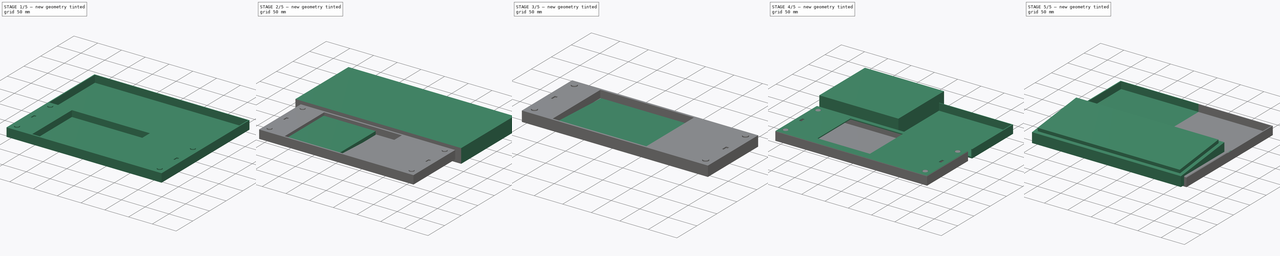
[diagram: build sequence overview — one tinted view per stage of 5, left to right]
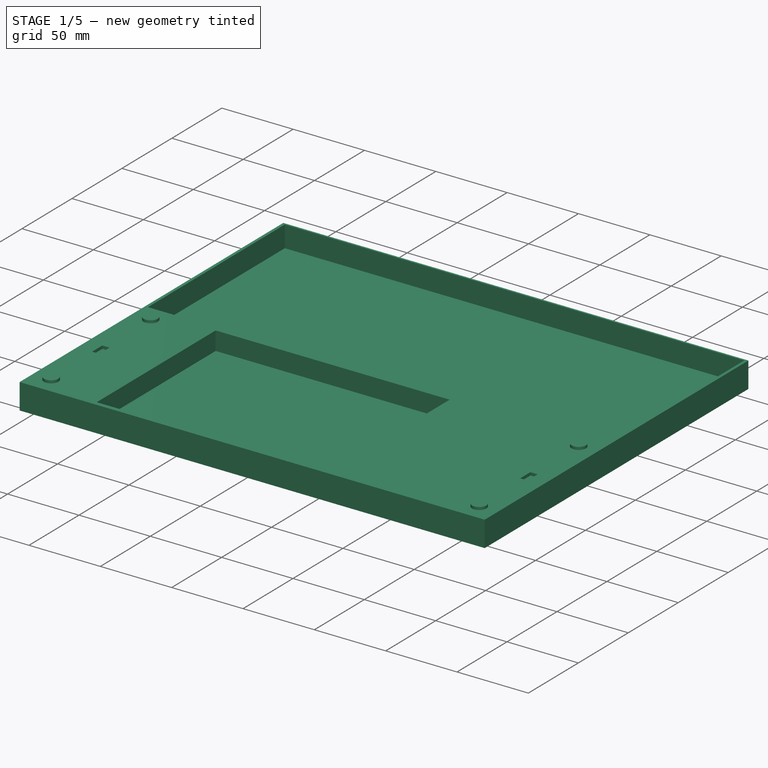
[diagram: stage 1 of 5 — iso view after this stage's code; geometry added in this stage tinted green]
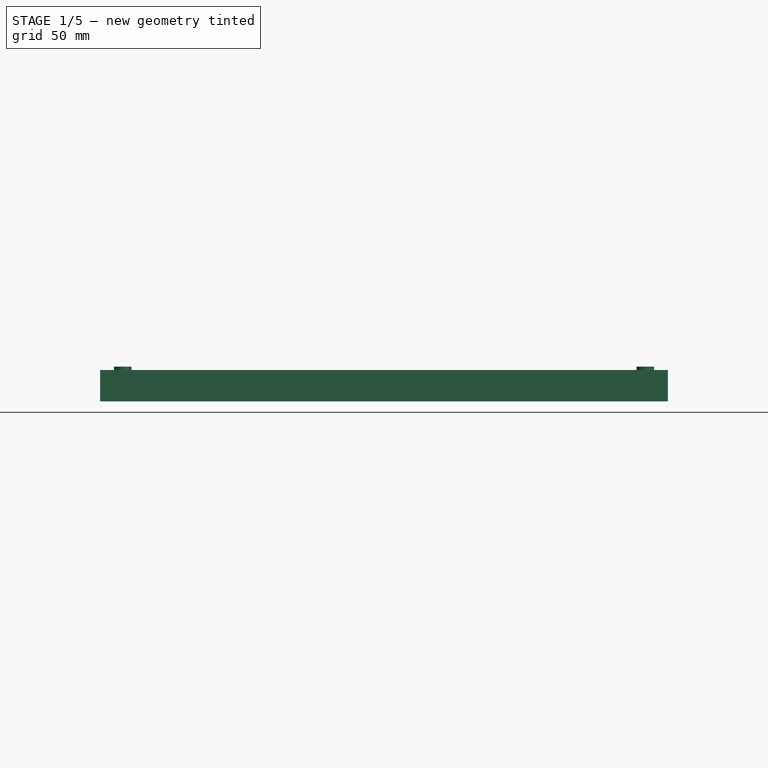
[diagram: stage 1 of 5 — front view after this stage's code; geometry added in this stage tinted green]
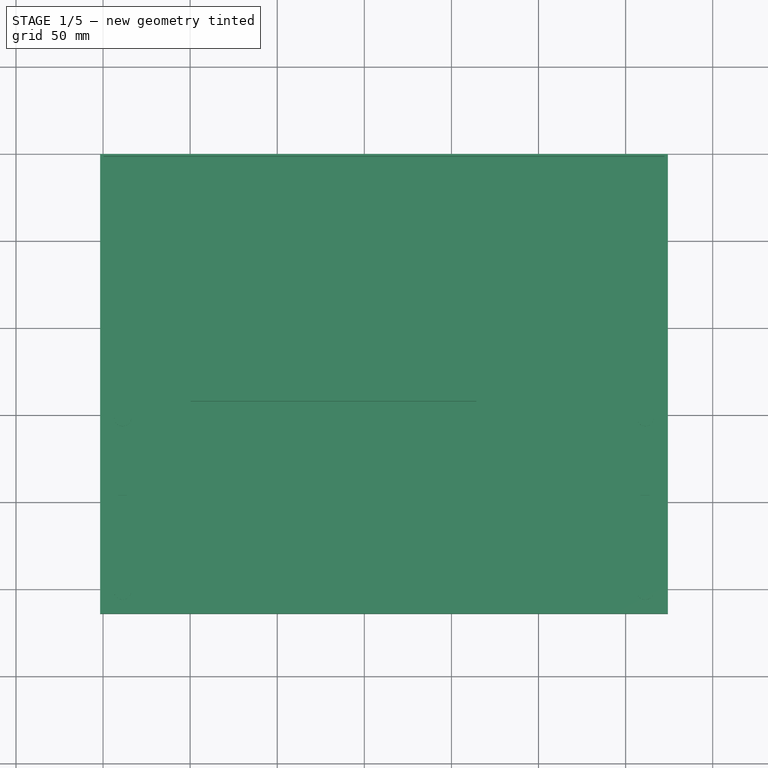
[diagram: stage 1 of 5 — top view after this stage's code; geometry added in this stage tinted green]
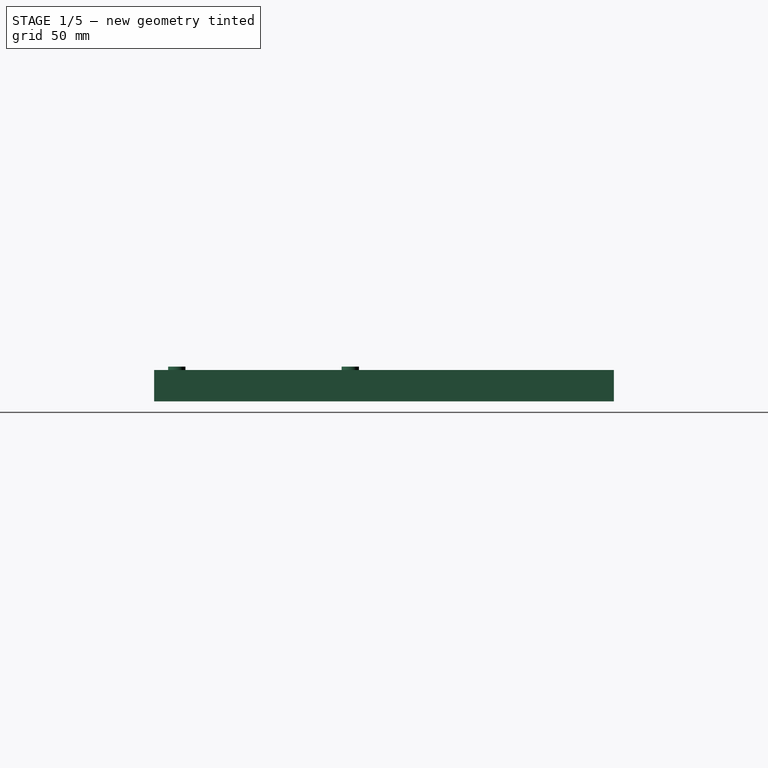
[diagram: stage 1 of 5 — right view after this stage's code; geometry added in this stage tinted green]
FCSTD DOCUMENT  (FreeCAD 0.19R24276 (Git))
Label: keypad
License: All rights reserved
LicenseURL: http://en.wikipedia.org/wiki/All_rights_reserved
objects: Sketcher::SketchObject×12, Part::Common×8, PartDesign::Pad×7, PartDesign::Body×5, PartDesign::Pocket×5, Part::Box×5, App::MeasureDistance×2, PartDesign::Fillet×1, Part::MultiFuse×1, Part::Cut×1
note: 58 computed .brp shape members not serialized (recipe doc carries the construction recipe); baked Part::Feature solids carry a one-line shape summary decoded from their .brp

FEATURE [PartDesign::Body] Body001  label="keyboard"
  Group = -> [Sketch001,Pad001,Sketch002,Pad002]
  Origin = -> Origin001
  Placement = pos=(2,138,2) rot=(0,0,1;0rad)
  Tip = -> Pad002
FEATURE [Sketcher::SketchObject] Sketch003  label="底板"
  FullyConstrained = false
  MapMode = 5
  Support = -> [XY_Plane002]
  sketch-geometry (4):
    g0: LineSegment StartX=324.294 StartY=199.796 StartZ=0 EndX=-1.70571 EndY=199.796 EndZ=0
    g1: LineSegment StartX=-1.70571 StartY=199.796 StartZ=0 EndX=-1.70571 EndY=-64.1519 EndZ=0
    g2: LineSegment StartX=-1.70571 StartY=-64.1519 StartZ=0 EndX=324.294 EndY=-64.1519 EndZ=0
    g3: LineSegment StartX=324.294 StartY=-64.1519 StartZ=0 EndX=324.294 EndY=199.796 EndZ=0
  constraints (9):
    c: Coincident(g0,g1)
    c: Coincident(g1,g2)
    c: Coincident(g2,g3)
    c: Coincident(g3,g0)
    c: Horizontal(g0)
    c: Horizontal(g2)
    c: Vertical(g1)
    c: Vertical(g3)
    c: DistanceX(g0,g0) = 326  '319+2+1.5x2'
FEATURE [PartDesign::Pad] Pad003  label="Pad_底板"
  AllowMultiFace = false
  Direction = (1,1,1)
  Length = 18
  Length2 = 100
  Profile = -> Sketch003
  Type = 0
FEATURE [Sketcher::SketchObject] Sketch004  label="挖键盘"
  ExternalGeometry = -> [Pad003]
  FullyConstrained = false
  MapMode = 5
  Placement = pos=(0,0,18) rot=(0,0,1;0rad)
  Support = -> [Pad003]
  sketch-geometry (4):
    g0: LineSegment StartX=0.294286 StartY=198.505 StartZ=0 EndX=322.294 EndY=198.505 EndZ=0
    g1: LineSegment StartX=322.294 StartY=198.505 StartZ=0 EndX=322.294 EndY=61.5047 EndZ=0
    g2: LineSegment StartX=322.294 StartY=61.5047 StartZ=0 EndX=0.294286 EndY=61.5047 EndZ=0
    g3: LineSegment StartX=0.294286 StartY=61.5047 StartZ=0 EndX=0.294286 EndY=198.505 EndZ=0
  constraints (11):
    c: Coincident(g0,g1)
    c: Coincident(g1,g2)
    c: Coincident(g2,g3)
    c: Coincident(g3,g0)
    c: Horizontal(g0)
    c: Horizontal(g2)
    c: Vertical(g1)
    c: Vertical(g3)
    c: DistanceX(g-4,g0) = 2
    c: DistanceX(g0,g-5) = 2
    c: DistanceY(g2,g0) = 137
FEATURE [PartDesign::Pocket] Pocket  label="Pocket_挖键盘"
  AllowMultiFace = false
  BaseFeature = -> Pad003
  Length = 15
  Length2 = 100
  Profile = -> Sketch004
  Type = 0
FEATURE [Sketcher::SketchObject] Sketch005  label="挖触摸板"
  ExternalGeometry = -> [Pocket]
  FullyConstrained = true
  MapMode = 5
  Placement = pos=(0,0,18) rot=(0,0,1;0rad)
  Support = -> [Pocket]
  sketch-geometry (4):
    g0: LineSegment StartX=50.2943 StartY=57.8481 StartZ=0 EndX=214.294 EndY=57.8481 EndZ=0
    g1: LineSegment StartX=214.294 StartY=57.8481 StartZ=0 EndX=214.294 EndY=-61.1519 EndZ=0
    g2: LineSegment StartX=214.294 StartY=-61.1519 StartZ=0 EndX=50.2943 EndY=-61.1519 EndZ=0
    g3: LineSegment StartX=50.2943 StartY=-61.1519 StartZ=0 EndX=50.2943 EndY=57.8481 EndZ=0
  constraints (12):
    c: Coincident(g0,g1)
    c: Coincident(g1,g2)
    c: Coincident(g2,g3)
    c: Coincident(g3,g0)
    c: Horizontal(g0)
    c: Horizontal(g2)
    c: Vertical(g1)
    c: Vertical(g3)
    c: DistanceY(g-5,g1) = 3
    c: DistanceY(g1,g1) = 119
    c: DistanceX(g0,g0) = 164
    c: DistanceX(g-4,g2) = 52
FEATURE [PartDesign::Pocket] Pocket001  label="Pocket_挖触摸板"
  AllowMultiFace = false
  BaseFeature = -> Pocket
  Length = 13
  Length2 = 100
  Profile = -> Sketch005
  Type = 0
FEATURE [PartDesign::Body] Body003  label="trackpad_斜坡"
  Group = -> [Sketch006,Pad004]
  Origin = -> Origin003
  Placement = pos=(52,-1,14) rot=(1,0,0;3.14159rad)
  Tip = -> Pad004
FEATURE [Sketcher::SketchObject] Sketch007
  FullyConstrained = false
  MapMode = 5
  Support = -> [XY_Plane004]
  sketch-geometry (4):
    g0: LineSegment StartX=-1.70326 StartY=61.5017 StartZ=0 EndX=324.294 EndY=61.5017 EndZ=0
    g1: LineSegment StartX=324.294 StartY=61.5017 StartZ=0 EndX=324.294 EndY=-64.1519 EndZ=0
    g2: LineSegment StartX=324.294 StartY=-64.1519 StartZ=0 EndX=-1.70326 EndY=-64.1519 EndZ=0
    g3: LineSegment StartX=-1.70326 StartY=-64.1519 StartZ=0 EndX=-1.70326 EndY=61.5017 EndZ=0
  constraints (8):
    c: Coincident(g0,g1)
    c: Coincident(g1,g2)
    c: Coincident(g2,g3)
    c: Coincident(g3,g0)
    c: Horizontal(g0)
    c: Horizontal(g2)
    c: Vertical(g1)
    c: Vertical(g3)
FEATURE [PartDesign::Pad] Pad005
  AllowMultiFace = false
  Direction = (1,1,1)
  Length = 2
  Length2 = 100
  Profile = -> Sketch007
  Type = 0
FEATURE [Sketcher::SketchObject] Sketch009  label="固定座"
  ExternalGeometry = -> [Pocket]
  FullyConstrained = true
  MapMode = 5
  Placement = pos=(0,0,18) rot=(0,0,1;0rad)
  Support = -> [Pocket]
  sketch-geometry (4):
    g0: Circle CenterX=11.2943 CenterY=48.4981 CenterZ=0 NormalX=0 NormalY=0 NormalZ=1 AngleXU=0 Radius=5
    g1: Circle CenterX=11.2943 CenterY=-51.1519 CenterZ=0 NormalX=0 NormalY=0 NormalZ=1 AngleXU=0 Radius=5
    g2: Circle CenterX=311.294 CenterY=-51.1519 CenterZ=0 NormalX=0 NormalY=0 NormalZ=1 AngleXU=0 Radius=5
    g3: Circle CenterX=311.294 CenterY=48.4981 CenterZ=0 NormalX=0 NormalY=0 NormalZ=1 AngleXU=0 Radius=5
  constraints (12):
    c: Radius(g0) = 5
    c: Equal(g0,g1)
    c: Equal(g0,g2)
    c: Equal(g0,g3)
    c: Distance(g0,g-3) = 13
    c: Distance(g1,g-3) = 13
    c: Distance(g1,g-6) = 13
    c: Distance(g2,g-6) = 13
    c: Distance(g2,g-5) = 13
    c: Distance(g3,g-5) = 13
    c: DistanceY(g1,g0) = 99.65
    c: DistanceY(g2,g3) = 99.65
FEATURE [PartDesign::Pad] Pad006  label="固定座001"
  AllowMultiFace = false
  BaseFeature = -> Pocket001
  Direction = (1,1,1)
  Length = 1.9
  Length2 = 100
  Profile = -> Sketch009
  Type = 0
FEATURE [Sketcher::SketchObject] Sketch012  label="Sketch挖磁铁"
  ExternalGeometry = -> [Pad006]
  FullyConstrained = true
  MapMode = 5
  Placement = pos=(0,0,18) rot=(0,0,1;0rad)
  Support = -> [Pad006]
  sketch-geometry (14):
    g0: LineSegment StartX=8.74429 StartY=3.77307 StartZ=0 EndX=13.8443 EndY=3.77307 EndZ=0
    g1: LineSegment StartX=13.8443 StartY=3.77307 StartZ=0 EndX=13.8443 EndY=-6.42693 EndZ=0
    g2: LineSegment StartX=13.8443 StartY=-6.42693 StartZ=0 EndX=8.74429 EndY=-6.42693 EndZ=0
    g3: LineSegment StartX=8.74429 StartY=-6.42693 StartZ=0 EndX=8.74429 EndY=3.77307 EndZ=0
    g4: LineSegment StartX=308.744 StartY=3.77307 StartZ=0 EndX=313.844 EndY=3.77307 EndZ=0
    g5: LineSegment StartX=313.844 StartY=3.77307 StartZ=0 EndX=313.844 EndY=-6.42693 EndZ=0
    g6: LineSegment StartX=313.844 StartY=-6.42693 StartZ=0 EndX=308.744 EndY=-6.42693 EndZ=0
    g7: LineSegment StartX=308.744 StartY=-6.42693 StartZ=0 EndX=308.744 EndY=3.77307 EndZ=0
    g8: LineSegment StartX=11.2943 StartY=48.4981 StartZ=0 EndX=11.2943 EndY=-51.1519 EndZ=0
    g9: LineSegment StartX=11.2943 StartY=48.4981 StartZ=0 EndX=13.8443 EndY=3.77307 EndZ=0
    g10: LineSegment StartX=13.8443 StartY=-6.42693 StartZ=0 EndX=11.2943 EndY=-51.1519 EndZ=0
    g11: LineSegment StartX=311.294 StartY=48.4981 StartZ=0 EndX=308.744 EndY=3.77307 EndZ=0
    g12: LineSegment StartX=308.744 StartY=-6.42693 StartZ=0 EndX=311.294 EndY=-51.1519 EndZ=0
    g13: LineSegment StartX=311.294 StartY=-51.1519 StartZ=0 EndX=311.294 EndY=48.4981 EndZ=0
  constraints (34):
    c: Coincident(g0,g1)
    c: Coincident(g1,g2)
    c: Coincident(g2,g3)
    c: Coincident(g3,g0)
    c: Horizontal(g2)
    c: Vertical(g1)
    c: Vertical(g3)
    c: Coincident(g4,g5)
    c: Coincident(g5,g6)
    c: Coincident(g6,g7)
    c: Coincident(g7,g4)
    c: Horizontal(g6)
    c: Vertical(g5)
    c: Vertical(g7)
    c: Coincident(g8,g-3)
    c: Coincident(g8,g-6)
    c: Coincident(g9,g8)
    c: Coincident(g9,g0)
    c: Coincident(g10,g1)
    c: Coincident(g10,g8)
    c: Coincident(g11,g-8)
    c: Coincident(g11,g4)
    c: Coincident(g12,g6)
    c: Coincident(g12,g-7)
    c: Coincident(g13,g12)
    c: Coincident(g13,g11)
    c: DistanceX(g0,g0) = 5.1
    c: DistanceX(g4,g4) = 5.1
    c: DistanceY(g1,g1) = 10.2
    c: DistanceY(g7,g7) = 10.2
    c: Symmetric(g0,g0,g8)
    c: Symmetric(g4,g4,g13)
    c: DistanceY(g4,g0) = 0
    c: Equal(g9,g10)
FEATURE [PartDesign::Pocket] Pocket004  label="Pocket挖磁铁"
  BaseFeature = -> Pad006
  Length = 2.1
  Length2 = 100
  Profile = -> Sketch012
  Type = 0
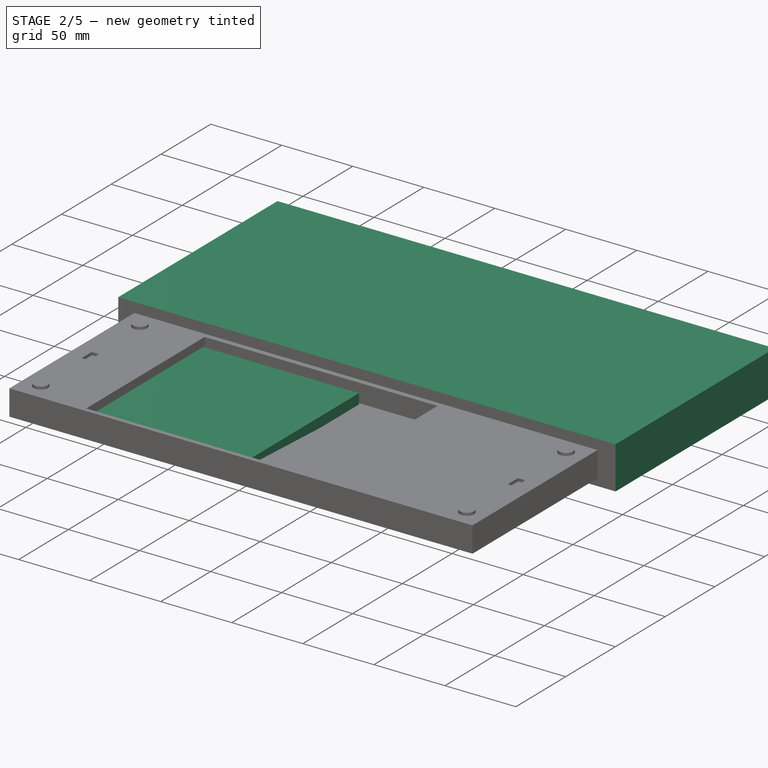
[diagram: stage 2 of 5 — iso view after this stage's code; geometry added in this stage tinted green]
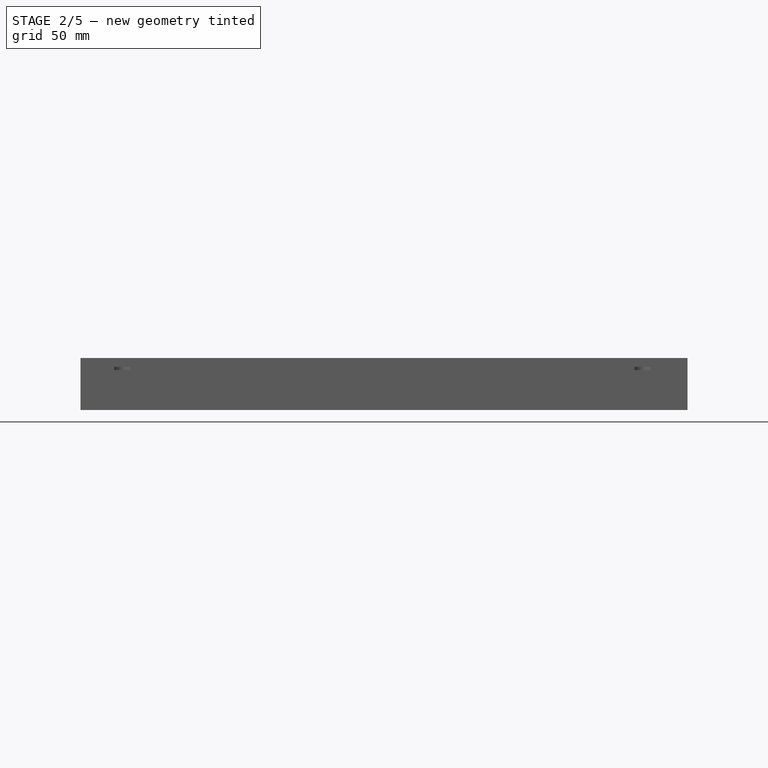
[diagram: stage 2 of 5 — front view after this stage's code; geometry added in this stage tinted green]
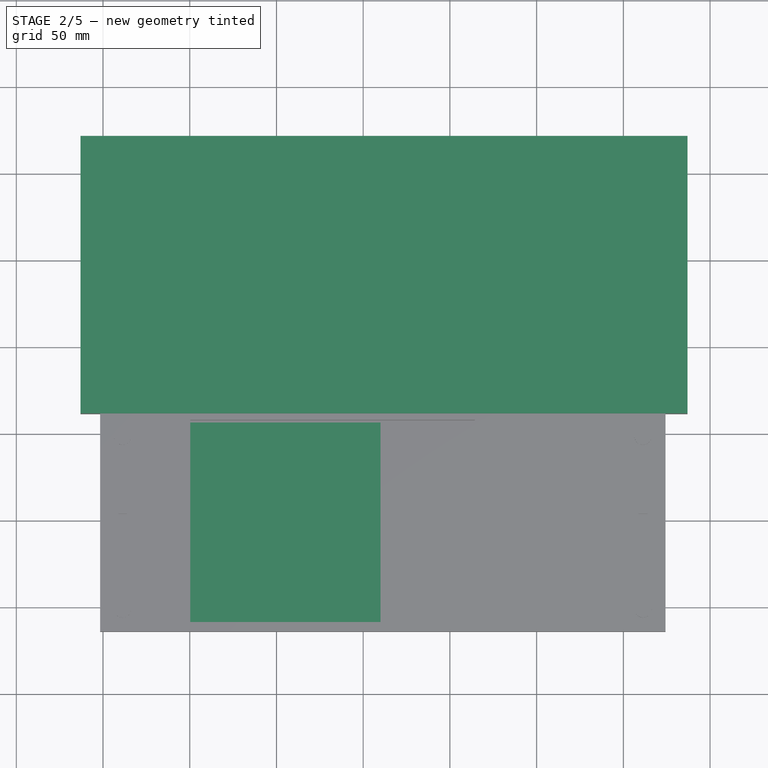
[diagram: stage 2 of 5 — top view after this stage's code; geometry added in this stage tinted green]
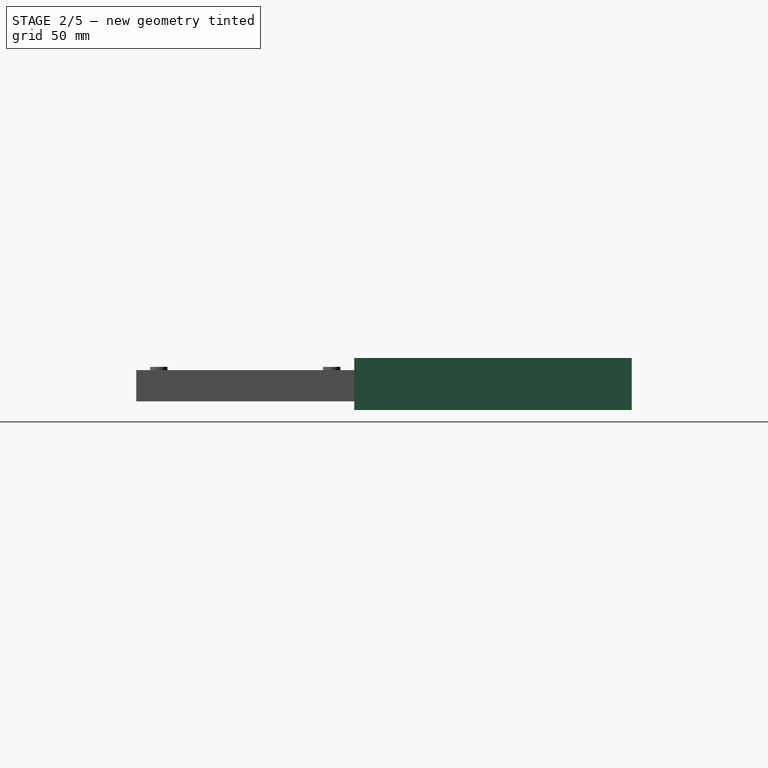
[diagram: stage 2 of 5 — right view after this stage's code; geometry added in this stage tinted green]
FEATURE [Sketcher::SketchObject] Sketch006
  FullyConstrained = false
  MapMode = 5
  Placement = pos=(0,0,0) rot=(0.57735,0.57735,0.57735;2.0944rad)
  Support = -> [YZ_Plane003]
  sketch-geometry (4):
    g0: LineSegment StartX=-58.5755 StartY=8.57135 StartZ=0 EndX=56.4245 EndY=3.17135 EndZ=0
    g1: LineSegment StartX=56.4245 StartY=12.1714 StartZ=0 EndX=56.4245 EndY=3.17135 EndZ=0
    g2: LineSegment StartX=56.4245 StartY=12.1714 StartZ=0 EndX=-58.5755 EndY=12.1714 EndZ=0
    g3: LineSegment StartX=-58.5755 StartY=12.1714 StartZ=0 EndX=-58.5755 EndY=8.57135 EndZ=0
  constraints (10):
    c: Coincident(g1,g2)
    c: Coincident(g3,g2)
    c: Coincident(g3,g0)
    c: Coincident(g1,g0)
    c: Parallel(g2,g-1)
    c: Parallel(g3,g-2)
    c: Parallel(g1,g-2)
    c: DistanceX(g2,g1) = 115
    c: DistanceY(g0,g1) = 9
    c: DistanceY(g0,g2) = 3.6
FEATURE [PartDesign::Pad] Pad004
  AllowMultiFace = false
  Direction = (1,1,1)
  Length = 160
  Length2 = 100
  Placement = pos=(0,0,0) rot=(0.57735,0.57735,0.57735;2.0944rad)
  Profile = -> Sketch006
  Type = 0
FEATURE [Sketcher::SketchObject] Sketch008  label="挖触摸板、固定孔"
  ExternalGeometry = -> [Pad005]
  FullyConstrained = false
  MapMode = 5
  Placement = pos=(0,0,2) rot=(0,0,1;0rad)
  Support = -> [Pad005]
  sketch-geometry (8):
    g0: LineSegment StartX=77.8267 StartY=53.0017 StartZ=0 EndX=190.327 EndY=53.0017 EndZ=0
    g1: LineSegment StartX=190.327 StartY=53.0017 StartZ=0 EndX=190.327 EndY=-48.3019 EndZ=0
    g2: LineSegment StartX=190.327 StartY=-48.3019 StartZ=0 EndX=77.8267 EndY=-48.3019 EndZ=0
    g3: LineSegment StartX=77.8267 StartY=-48.3019 StartZ=0 EndX=77.8267 EndY=53.0017 EndZ=0
    g4: Circle CenterX=11.2967 CenterY=48.4981 CenterZ=0 NormalX=0 NormalY=0 NormalZ=1 AngleXU=0 Radius=5.3
    g5: Circle CenterX=11.2967 CenterY=-51.1519 CenterZ=0 NormalX=0 NormalY=0 NormalZ=1 AngleXU=0 Radius=5.3
    g6: Circle CenterX=311.294 CenterY=48.4981 CenterZ=0 NormalX=0 NormalY=0 NormalZ=1 AngleXU=0 Radius=5.3
    g7: Circle CenterX=311.294 CenterY=-51.1519 CenterZ=0 NormalX=0 NormalY=0 NormalZ=1 AngleXU=0 Radius=5.3
  constraints (24):
    c: Coincident(g0,g1)
    c: Coincident(g1,g2)
    c: Coincident(g2,g3)
    c: Coincident(g3,g0)
    c: Horizontal(g0)
    c: Horizontal(g2)
    c: Vertical(g1)
    c: Vertical(g3)
    c: Radius(g4) = 5.3
    c: Equal(g4,g5)
    c: Equal(g4,g6)
    c: Equal(g4,g7)
    c: Distance(g4,g-4) = 13
    c: Distance(g5,g-5) = 13
    c: Distance(g5,g-4) = 13
    c: Distance(g6,g-6) = 13
    c: Distance(g7,g-6) = 13
    c: Distance(g7,g-5) = 13
    c: DistanceY(g5,g4) = 99.65
    c: DistanceY(g7,g6) = 99.65
    c: DistanceX(g0,g0) = 112.5
    c: Distance(g0,g-3) = 8.5
    c: DistanceX(g-4,g0) = 79.53
    c: DistanceY(g-5,g2) = 15.85
FEATURE [PartDesign::Pocket] Pocket002  label="挖触摸板、固定孔001"
  AllowMultiFace = false
  BaseFeature = -> Pad005
  Length = 3
  Length2 = 100
  Profile = -> Sketch008
  Type = 0
FEATURE [Part::Box] Box004  label="立方体_去除键盘部分"
  AttacherType = Attacher::AttachEngine3D
  Height = 30
  Length = 350
  Placement = pos=(-13,61.51,-5) rot=(0,0,1;0rad)
  Width = 160
FEATURE [PartDesign::Fillet] Fillet
  Base = -> Pocket002 [Edge20,Edge10,Edge7]
  BaseFeature = -> Pocket002
  Radius = 1.99
  SupportTransform = false
FEATURE [Sketcher::SketchObject] Sketch010  label="Sketch挖磁铁001"
  ExternalGeometry = -> [Fillet]
  FullyConstrained = true
  MapMode = 5
  Placement = pos=(0,0,0) rot=(1,0,0;3.14159rad)
  Support = -> [Fillet]
  sketch-geometry (12):
    g0: LineSegment StartX=8.74674 StartY=6.42695 StartZ=0 EndX=13.8467 EndY=6.42695 EndZ=0
    g1: LineSegment StartX=13.8467 StartY=6.42695 StartZ=0 EndX=13.8467 EndY=-3.77305 EndZ=0
    g2: LineSegment StartX=13.8467 StartY=-3.77305 StartZ=0 EndX=8.74674 EndY=-3.77305 EndZ=0
    g3: LineSegment StartX=8.74674 StartY=-3.77305 StartZ=0 EndX=8.74674 EndY=6.42695 EndZ=0
    g4: LineSegment StartX=308.744 StartY=6.42695 StartZ=0 EndX=313.844 EndY=6.42695 EndZ=0
    g5: LineSegment StartX=313.844 StartY=6.42695 StartZ=0 EndX=313.844 EndY=-3.77305 EndZ=0
    g6: LineSegment StartX=313.844 StartY=-3.77305 StartZ=0 EndX=308.744 EndY=-3.77305 EndZ=0
    g7: LineSegment StartX=308.744 StartY=-3.77305 StartZ=0 EndX=308.744 EndY=6.42695 EndZ=0
    g8: LineSegment StartX=11.2967 StartY=51.1519 StartZ=0 EndX=11.2967 EndY=-48.4981 EndZ=0
    g9: LineSegment StartX=311.294 StartY=51.1519 StartZ=0 EndX=311.294 EndY=-48.4981 EndZ=0
    g10: LineSegment StartX=11.2967 StartY=51.1519 StartZ=0 EndX=13.8467 EndY=6.42695 EndZ=0
    g11: LineSegment StartX=13.8467 StartY=-3.77305 StartZ=0 EndX=11.2967 EndY=-48.4981 EndZ=0
  constraints (30):
    c: Coincident(g0,g1)
    c: Coincident(g1,g2)
    c: Coincident(g2,g3)
    c: Coincident(g3,g0)
    c: Horizontal(g2)
    c: Vertical(g1)
    c: Vertical(g3)
    c: Coincident(g4,g5)
    c: Coincident(g5,g6)
    c: Coincident(g6,g7)
    c: Coincident(g7,g4)
    c: Horizontal(g6)
    c: Vertical(g5)
    c: Vertical(g7)
    c: DistanceY(g3,g3) = 10.2
    c: DistanceX(g0,g0) = 5.1
    c: DistanceX(g4,g4) = 5.1
    c: DistanceY(g7,g7) = 10.2
    c: DistanceY(g0,g4) = 0
    c: Coincident(g8,g-7)
    c: Coincident(g8,g-8)
    c: Coincident(g9,g-9)
    c: Coincident(g9,g-10)
    c: Symmetric(g0,g0,g8)
    c: Symmetric(g4,g4,g9)
    c: Coincident(g10,g8)
    c: Coincident(g10,g0)
    c: Coincident(g11,g1)
    c: Coincident(g11,g8)
    c: Equal(g10,g11)
FEATURE [PartDesign::Pocket] Pocket003  label="Pocket挖磁铁001"
  BaseFeature = -> Fillet
  Length = 2
  Length2 = 100
  Profile = -> Sketch010
  Type = 0
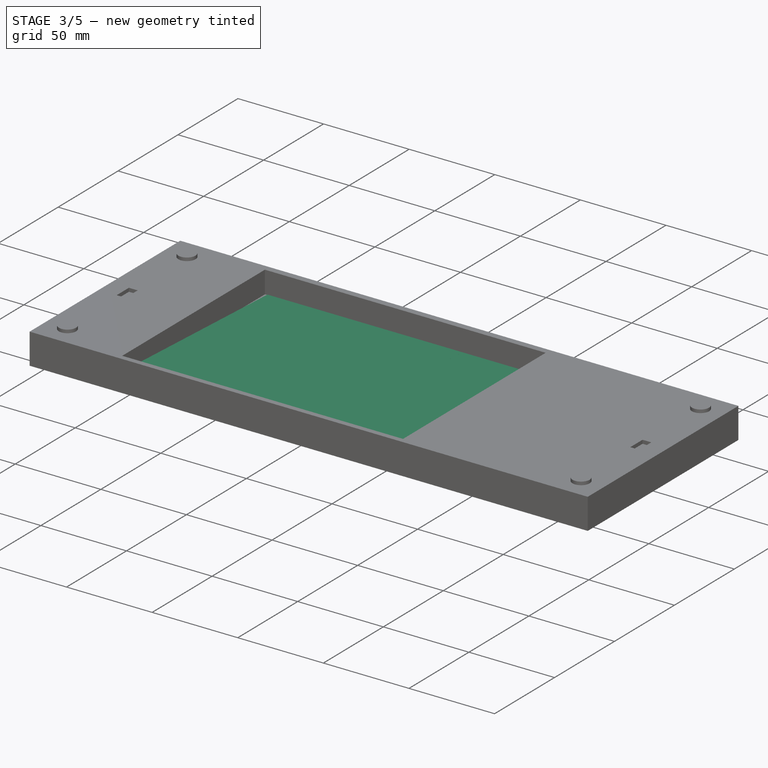
[diagram: stage 3 of 5 — iso view after this stage's code; geometry added in this stage tinted green]
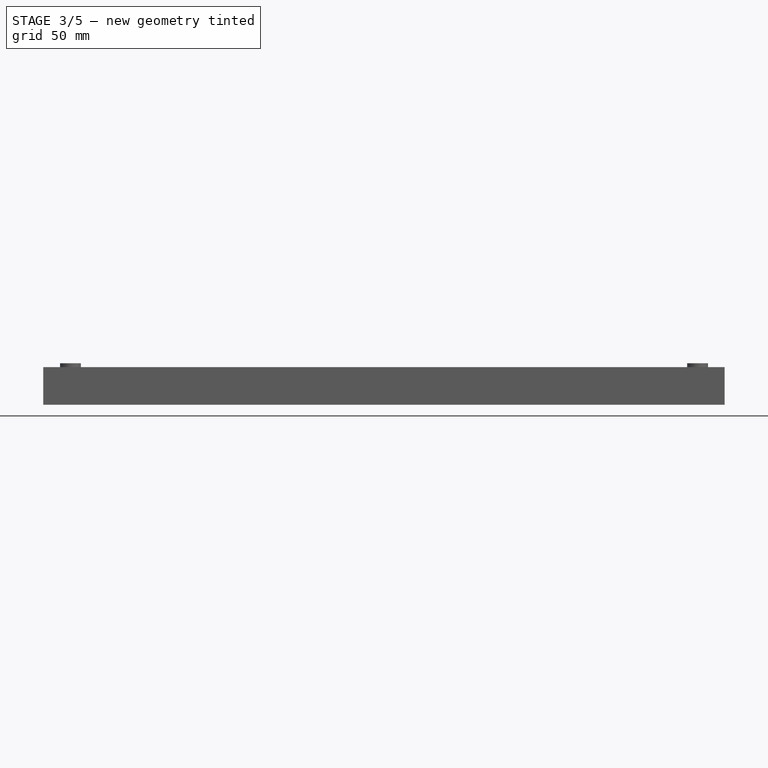
[diagram: stage 3 of 5 — front view after this stage's code; geometry added in this stage tinted green]
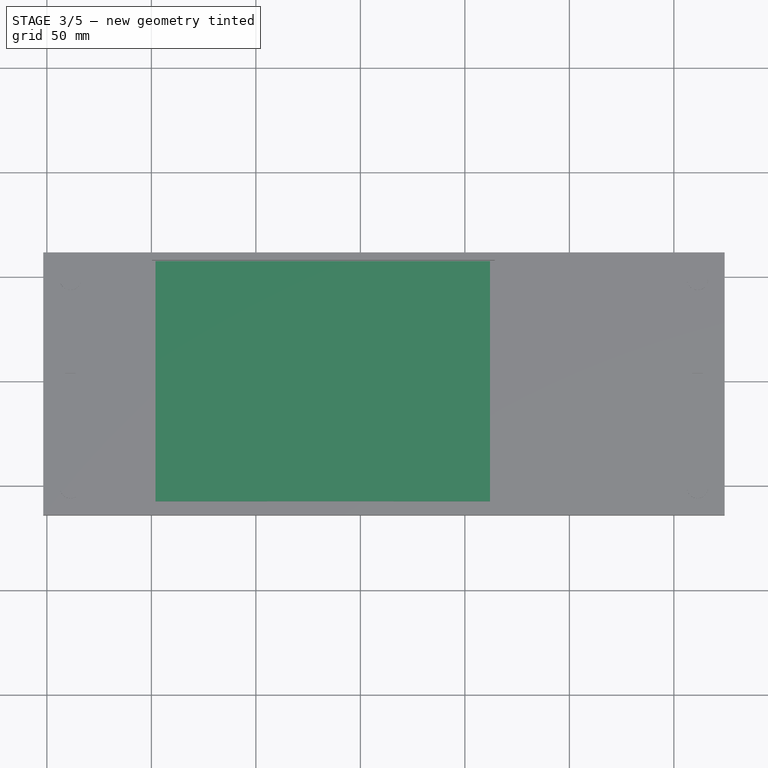
[diagram: stage 3 of 5 — top view after this stage's code; geometry added in this stage tinted green]
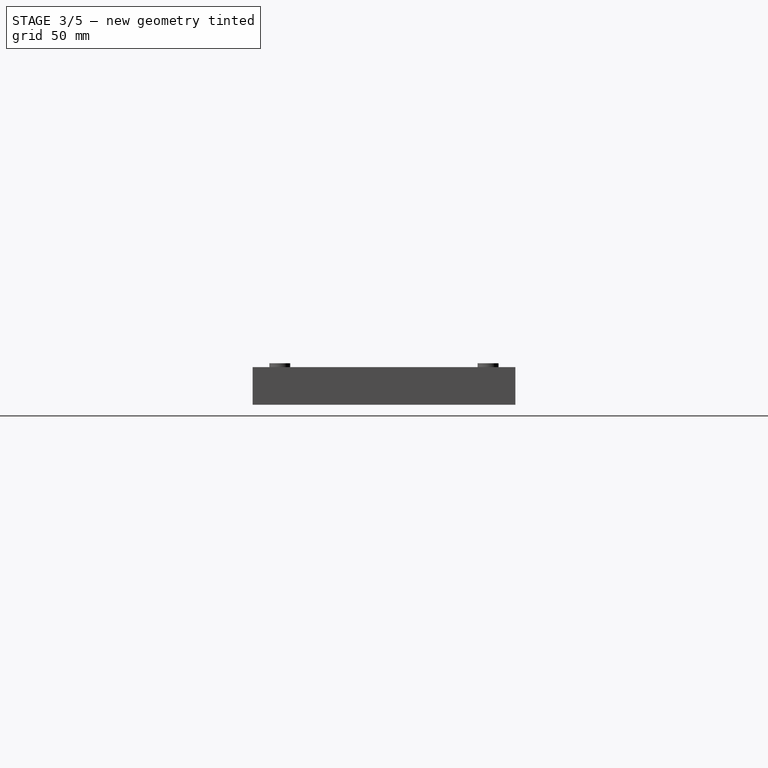
[diagram: stage 3 of 5 — right view after this stage's code; geometry added in this stage tinted green]
FEATURE [Part::Box] Box  label="切片1"
  AttacherType = Attacher::AttachEngine3D
  Height = 40
  Length = 170
  Placement = pos=(-4,-66,-5) rot=(0,0,1;0rad)
  Width = 140
FEATURE [App::MeasureDistance] Distance  label="Distance: 263.96 mm"
  Distance = 263.961
  P1 = (-1.70571,199.796,10.809)
  P2 = (-1.70571,-64.1519,8.23797)
FEATURE [App::MeasureDistance] Distance001  label="Distance: 326.00 mm"
  Distance = 326
  P1 = (-1.70571,199.796,0)
  P2 = (324.294,199.796,0)
FEATURE [Part::Box] Box001  label="切片2"
  AttacherType = Attacher::AttachEngine3D
  Height = 40
  Length = 170
  Placement = pos=(166,-66,-5) rot=(0,0,1;0rad)
  Width = 140
FEATURE [PartDesign::Body] Body002  label="base"
  Group = -> [Sketch003,Pad003,Sketch004,Pocket,Sketch005,Pocket001,Sketch009,Pad006,Sketch012,Pocket004]
  Origin = -> Origin002
  Tip = -> Pocket004
FEATURE [Part::MultiFuse] Fusion  label="base_all"
  Shapes = -> [Body003,Body002]
FEATURE [Part::Cut] Cut  label="base_手托"
  Base = -> Fusion
  Tool = -> Box004
FEATURE [Part::Common] Common006  label="base_手托_1"
  Base = -> Box
  Tool = -> Cut
FEATURE [Part::Common] Common007  label="base_手托_2"
  Base = -> Box001
  Tool = -> Cut
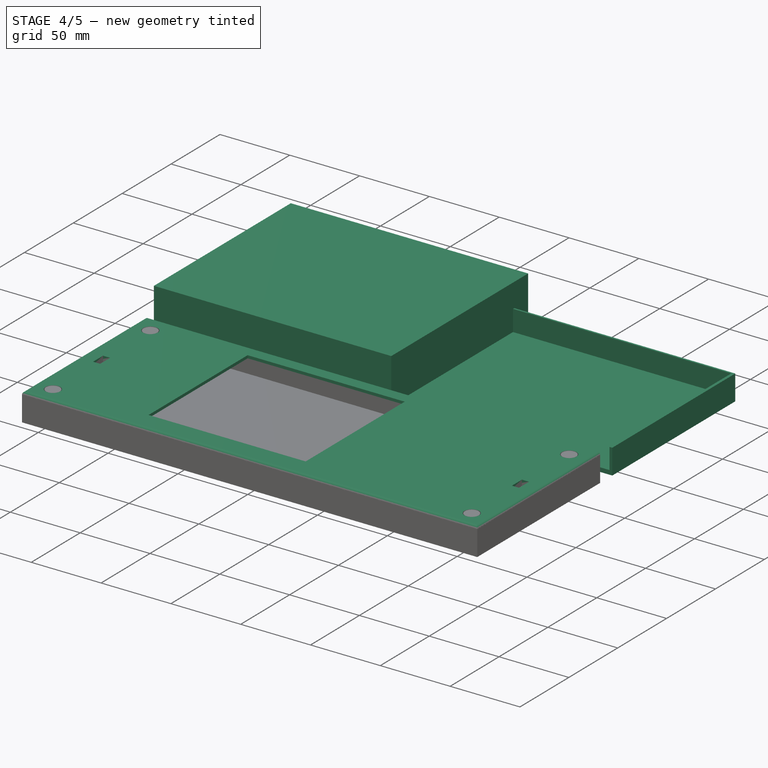
[diagram: stage 4 of 5 — iso view after this stage's code; geometry added in this stage tinted green]
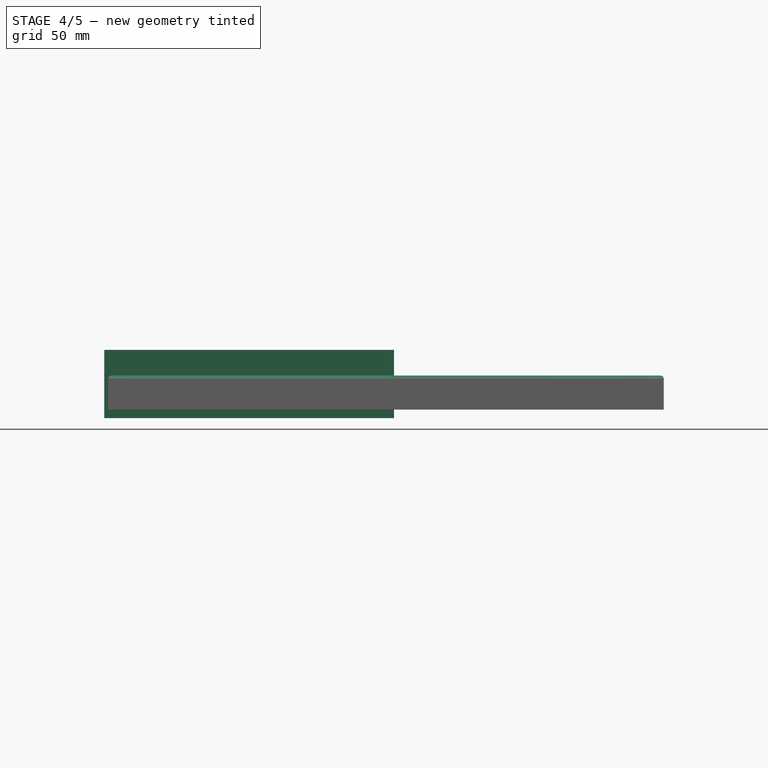
[diagram: stage 4 of 5 — front view after this stage's code; geometry added in this stage tinted green]
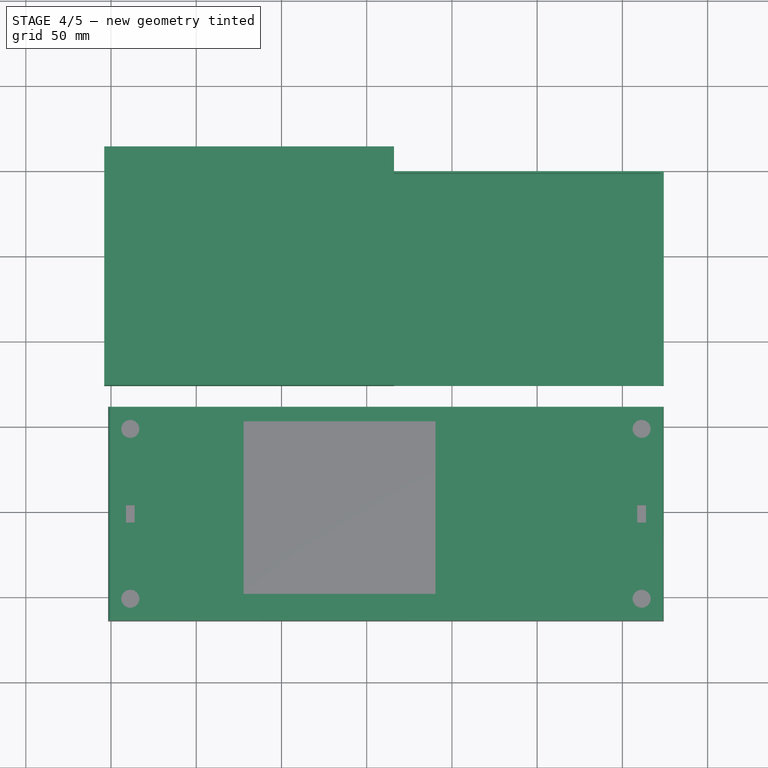
[diagram: stage 4 of 5 — top view after this stage's code; geometry added in this stage tinted green]
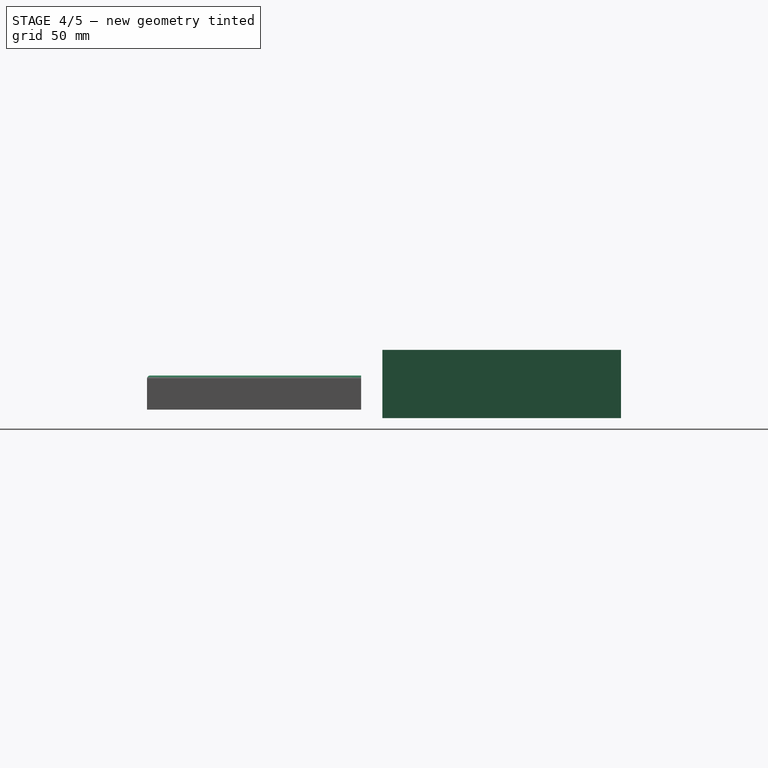
[diagram: stage 4 of 5 — right view after this stage's code; geometry added in this stage tinted green]
FEATURE [Part::Box] Box002  label="切片3"
  AttacherType = Attacher::AttachEngine3D
  Height = 40
  Length = 170
  Placement = pos=(-4,74,-5) rot=(0,0,1;0rad)
  Width = 140
FEATURE [Part::Box] Box003  label="切片4"
  AttacherType = Attacher::AttachEngine3D
  Height = 40
  Length = 170
  Placement = pos=(166,74,-5) rot=(0,0,1;0rad)
  Width = 140
FEATURE [PartDesign::Body] Body004  label="盖板"
  Group = -> [Sketch007,Pad005,Sketch008,Pocket002,Fillet,Sketch010,Pocket003]
  Origin = -> Origin004
  Placement = pos=(0,0,18.01) rot=(0,0,1;0rad)
  Tip = -> Pocket003
FEATURE [Part::Common] Common004  label="盖板1"
  Base = -> Body004
  Tool = -> Box
FEATURE [Part::Common] Common005  label="盖板2"
  Base = -> Body004
  Tool = -> Box001
FEATURE [Part::Common] Common003  label="base4"
  Base = -> Fusion
  Tool = -> Box003
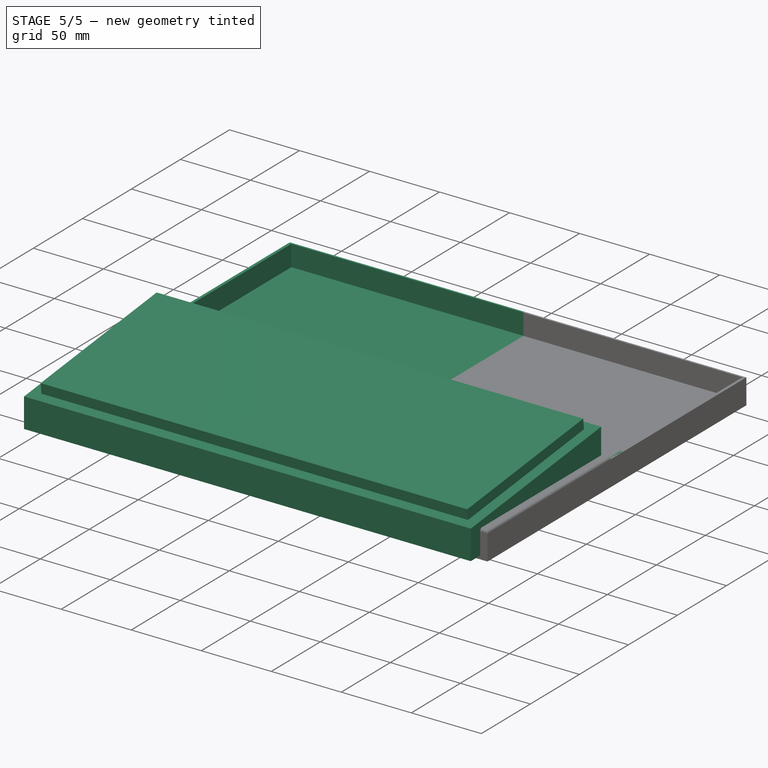
[diagram: stage 5 of 5 — iso view after this stage's code; geometry added in this stage tinted green]
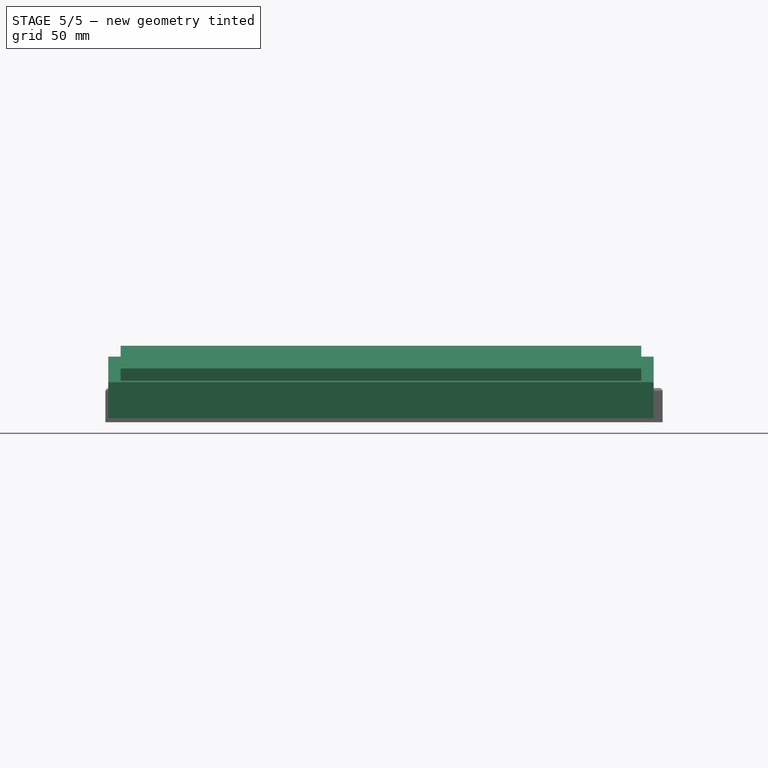
[diagram: stage 5 of 5 — front view after this stage's code; geometry added in this stage tinted green]
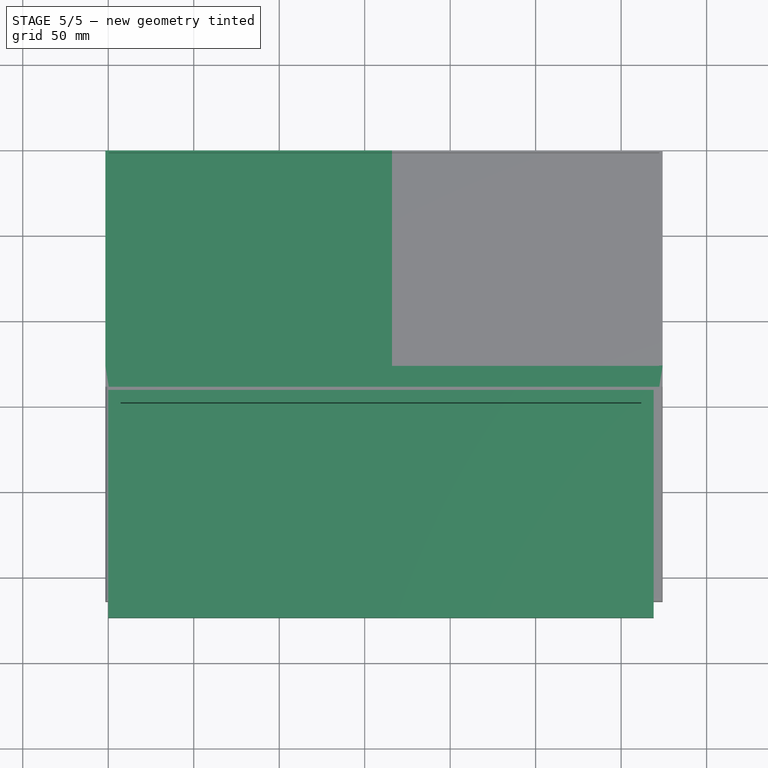
[diagram: stage 5 of 5 — top view after this stage's code; geometry added in this stage tinted green]
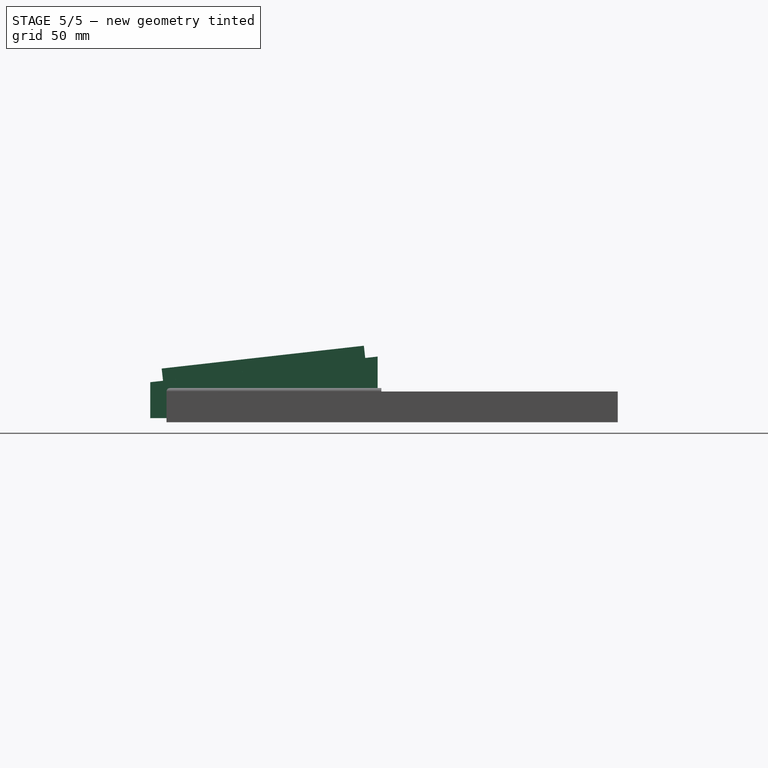
[diagram: stage 5 of 5 — right view after this stage's code; geometry added in this stage tinted green]
FEATURE [Sketcher::SketchObject] Sketch
  FullyConstrained = false
  MapMode = 5
  Placement = pos=(0,0,0) rot=(0.57735,0.57735,0.57735;2.0944rad)
  Support = -> [YZ_Plane]
  sketch-geometry (4):
    g0: LineSegment StartX=-58.5755 StartY=8.20092 StartZ=0 EndX=56.4245 EndY=2.80092 EndZ=0
    g1: LineSegment StartX=56.4245 StartY=13.8009 StartZ=0 EndX=56.4245 EndY=2.80092 EndZ=0
    g2: LineSegment StartX=56.4245 StartY=13.8009 StartZ=0 EndX=-58.5755 EndY=13.8009 EndZ=0
    g3: LineSegment StartX=-58.5755 StartY=13.8009 StartZ=0 EndX=-58.5755 EndY=8.20092 EndZ=0
  constraints (10):
    c: Coincident(g1,g2)
    c: Coincident(g3,g2)
    c: Coincident(g3,g0)
    c: Coincident(g1,g0)
    c: Parallel(g2,g-1)
    c: Parallel(g3,g-2)
    c: Parallel(g1,g-2)
    c: DistanceX(g2,g1) = 115
    c: DistanceY(g0,g1) = 11
    c: DistanceY(g0,g2) = 5.6
FEATURE [PartDesign::Pad] Pad
  AllowMultiFace = false
  Direction = (1,1,1)
  Length = 160
  Length2 = 100
  Placement = pos=(0,0,0) rot=(0.57735,0.57735,0.57735;2.0944rad)
  Profile = -> Sketch
  Type = 0
FEATURE [PartDesign::Body] Body  label="trackpad"
  Group = -> [Sketch,Pad]
  Origin = -> Origin
  Placement = pos=(52,-1,3.5) rot=(0,0,1;0rad)
  Tip = -> Pad
FEATURE [Sketcher::SketchObject] Sketch001  label="键盘身001"
  FullyConstrained = false
  MapMode = 5
  Placement = pos=(0,0,0) rot=(0.57735,0.57735,0.57735;2.0944rad)
  Support = -> [YZ_Plane001]
  sketch-geometry (4):
    g0: LineSegment StartX=-73.6628 StartY=2.43218 StartZ=0 EndX=59.3372 EndY=2.43218 EndZ=0
    g1: LineSegment StartX=59.3372 StartY=2.43218 StartZ=0 EndX=59.3372 EndY=38.4322 EndZ=0
    g2: LineSegment StartX=59.3372 StartY=38.4322 StartZ=0 EndX=-73.6628 EndY=23.4322 EndZ=0
    g3: LineSegment StartX=-73.6628 StartY=23.4322 StartZ=0 EndX=-73.6628 EndY=2.43218 EndZ=0
  constraints (10):
    c: Horizontal(g0)
    c: Coincident(g3,g2)
    c: Coincident(g2,g1)
    c: Coincident(g1,g0)
    c: Coincident(g0,g3)
    c: Parallel(g1,g-2)
    c: Parallel(g3,g-2)
    c: DistanceY(g0,g2) = 21
    c: DistanceY(g0,g1) = 36
    c: DistanceX(g0,g0) = 133
FEATURE [PartDesign::Pad] Pad001  label="键盘身"
  AllowMultiFace = false
  Direction = (1,1,1)
  Length = 319
  Length2 = 100
  Placement = pos=(0,0,0) rot=(0.57735,0.57735,0.57735;2.0944rad)
  Profile = -> Sketch001
  Type = 0
FEATURE [Sketcher::SketchObject] Sketch002
  ExternalGeometry = -> [Pad001]
  FullyConstrained = false
  MapMode = 5
  Placement = pos=(-1.04e-14,-3.53474,31.3414) rot=(0.056036,0.056036,-0.996855;1.57395rad)
  Support = -> [Pad001]
  sketch-geometry (4):
    g0: LineSegment StartX=-55.9705 StartY=311.8 StartZ=0 EndX=63.0427 EndY=311.8 EndZ=0
    g1: LineSegment StartX=63.0427 StartY=311.8 StartZ=0 EndX=63.0427 EndY=7.2 EndZ=0
    g2: LineSegment StartX=63.0427 StartY=7.2 StartZ=0 EndX=-55.9705 EndY=7.2 EndZ=0
    g3: LineSegment StartX=-55.9705 StartY=7.2 StartZ=0 EndX=-55.9705 EndY=311.8 EndZ=0
  constraints (12):
    c: Coincident(g0,g1)
    c: Coincident(g1,g2)
    c: Coincident(g2,g3)
    c: Coincident(g3,g0)
    c: Horizontal(g0)
    c: Horizontal(g2)
    c: Vertical(g1)
    c: Vertical(g3)
    c: DistanceX(g0,g-4) = 7.53
    c: DistanceX(g-5,g0) = 7.3
    c: DistanceY(g0,g-4) = 7.2
    c: DistanceY(g-4,g1) = 7.2
FEATURE [PartDesign::Pad] Pad002
  AllowMultiFace = false
  BaseFeature = -> Pad001
  Direction = (1,1,1)
  Length = 7.2
  Length2 = 100
  Placement = pos=(0,0,0) rot=(0.57735,0.57735,0.57735;2.0944rad)
  Profile = -> Sketch002
  Type = 0
FEATURE [Part::Common] Common  label="base1"
  Base = -> Fusion
  Tool = -> Box
FEATURE [Part::Common] Common001  label="base2"
  Base = -> Fusion
  Tool = -> Box001
FEATURE [Part::Common] Common002  label="base3"
  Base = -> Fusion
  Tool = -> Box002
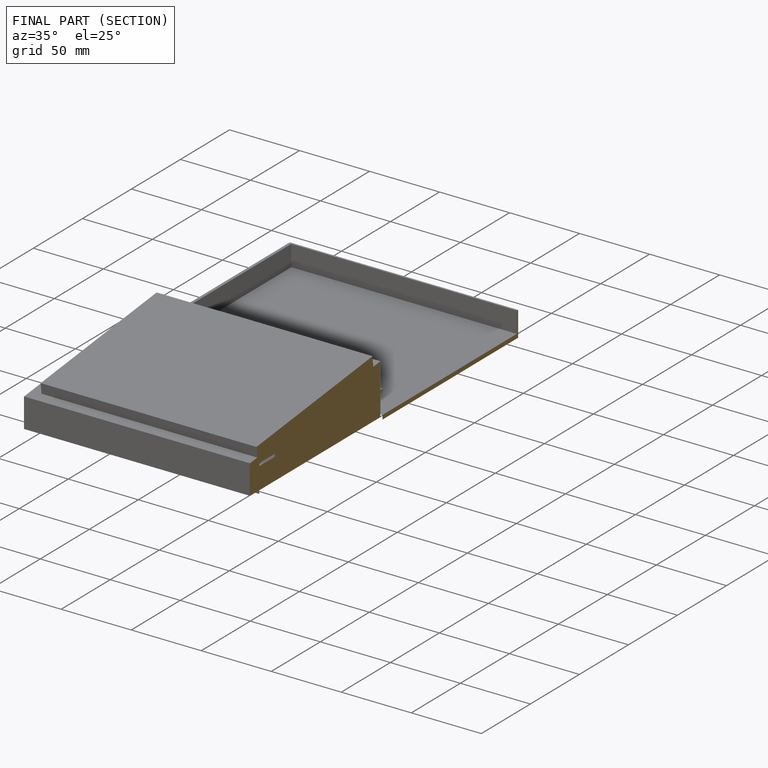
[diagram: finished part — half-section view (interior)]
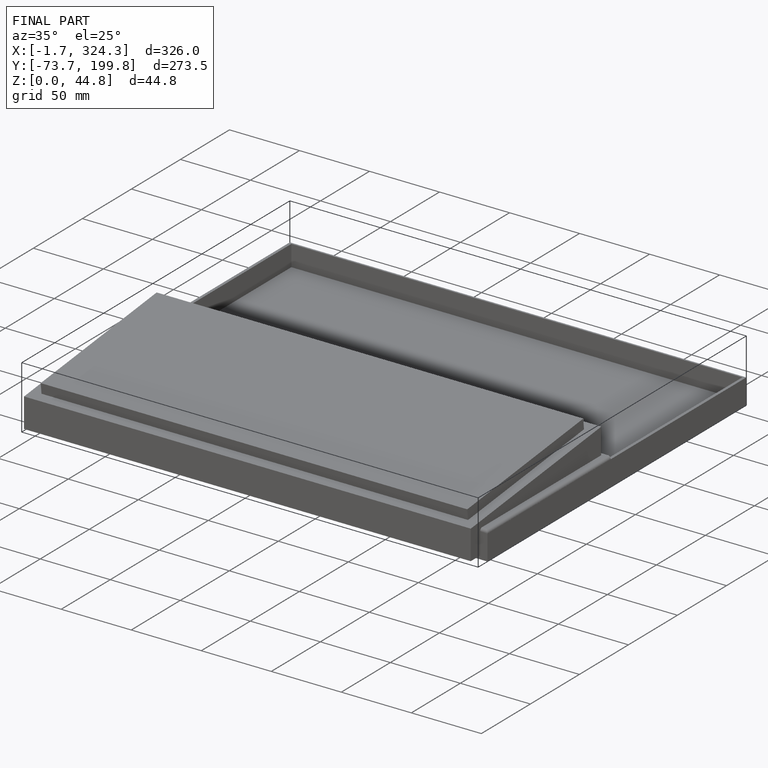
[diagram: finished part — iso view with bounding-box wireframe]
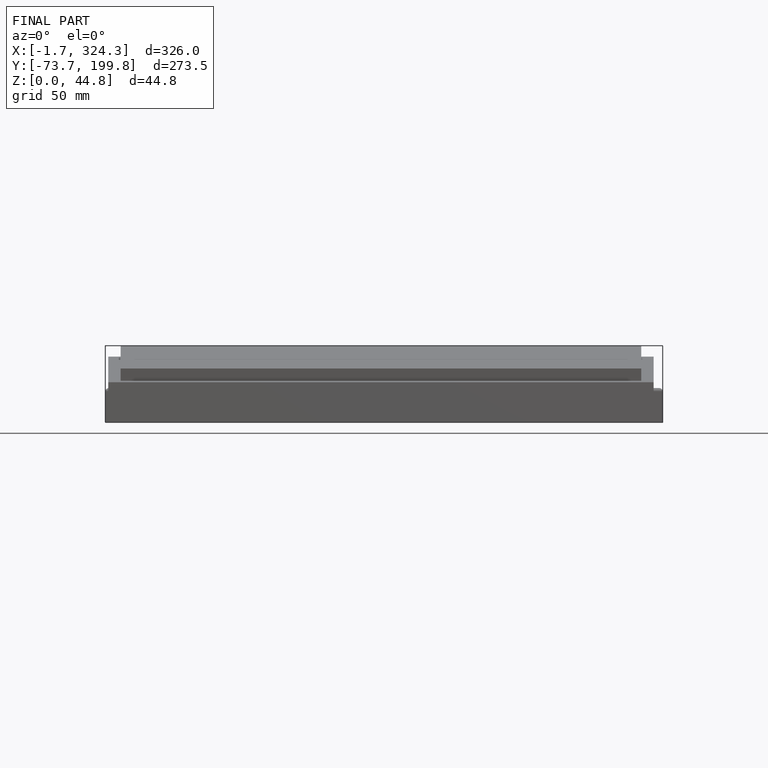
[diagram: finished part — front view with bounding-box wireframe]
